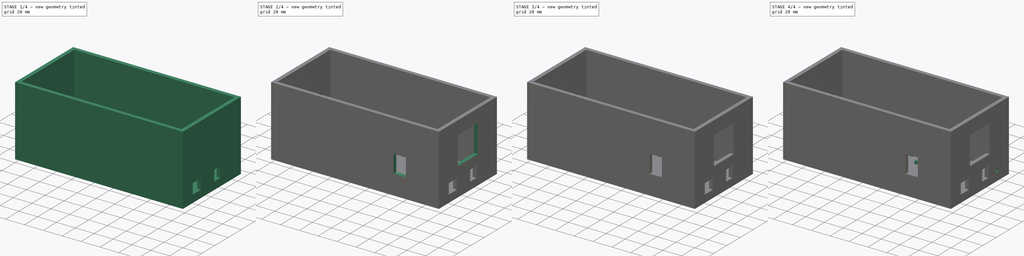
[diagram: build sequence overview — one tinted view per stage of 4, left to right]
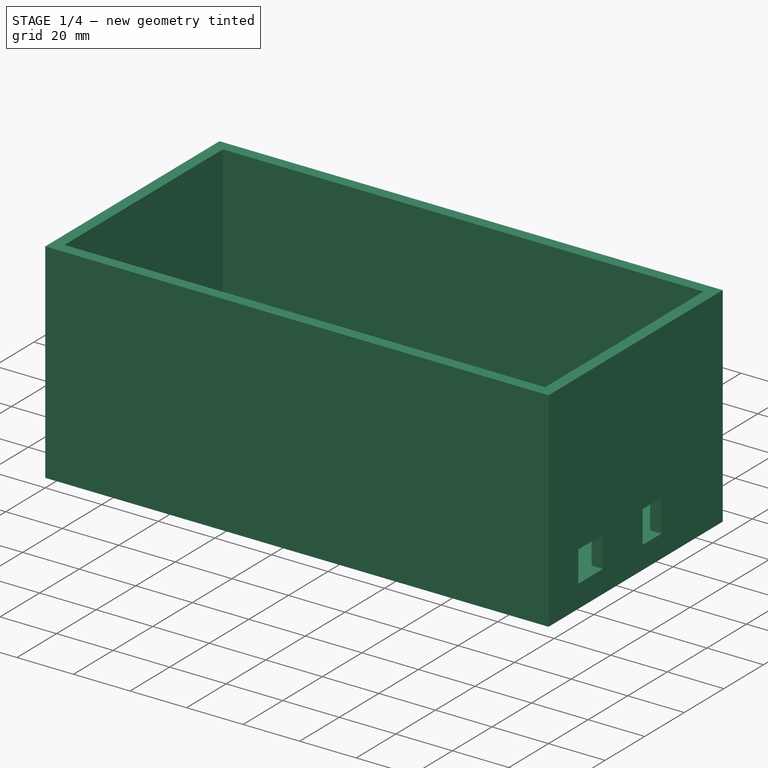
[diagram: stage 1 of 4 — iso view after this stage's code; geometry added in this stage tinted green]
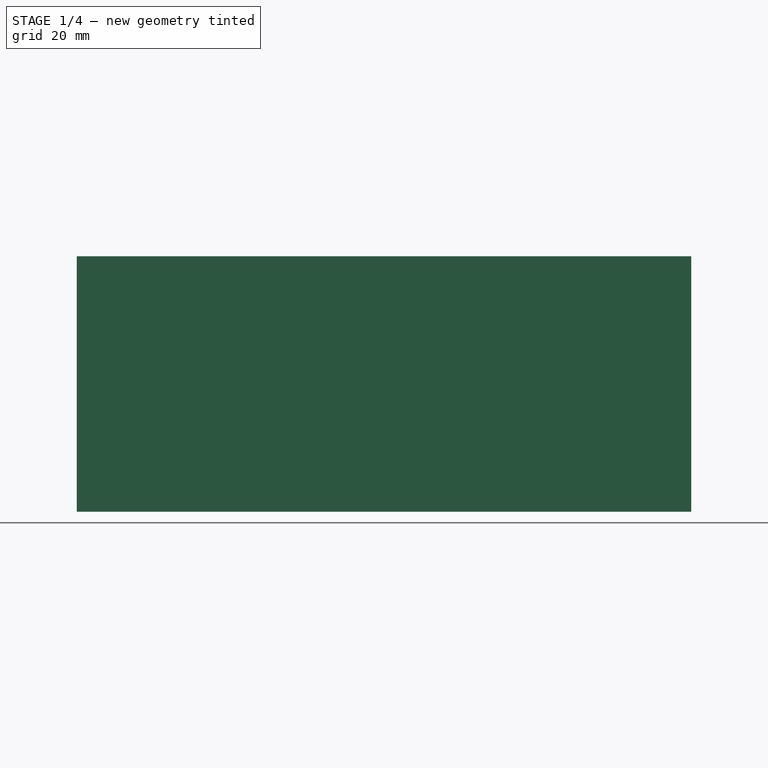
[diagram: stage 1 of 4 — front view after this stage's code; geometry added in this stage tinted green]
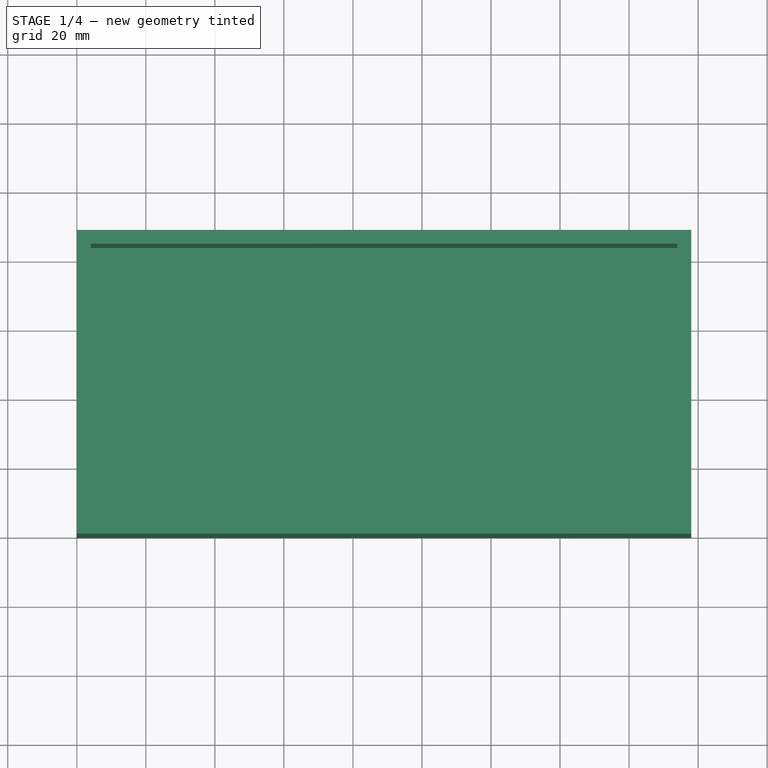
[diagram: stage 1 of 4 — top view after this stage's code; geometry added in this stage tinted green]
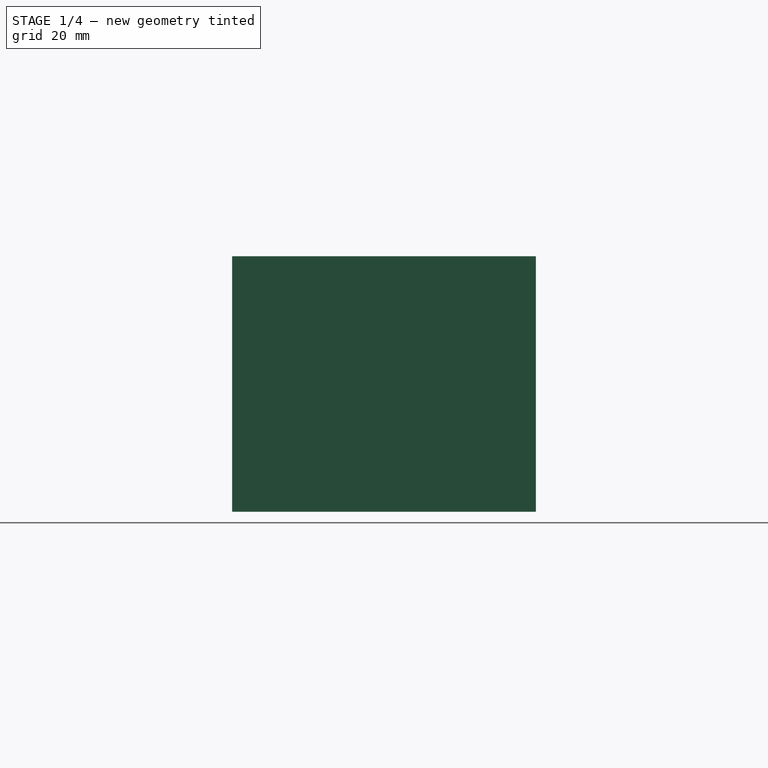
[diagram: stage 1 of 4 — right view after this stage's code; geometry added in this stage tinted green]
FCSTD DOCUMENT  (FreeCAD 1.0R39285 (Git))
Label: nariz_eletronico_arrumado
License: All rights reserved
LicenseURL: http://en.wikipedia.org/wiki/All_rights_reserved
objects: Sketcher::SketchObject×11, PartDesign::Pocket×7, PartDesign::Pad×4, PartDesign::Body×1
note: 56 computed .brp shape members not serialized (recipe doc carries the construction recipe); baked Part::Feature solids carry a one-line shape summary decoded from their .brp

FEATURE [Sketcher::SketchObject] Sketch
  ArcFitTolerance = 1e-06
  AttachmentSupport = -> [XY_Plane]
  FullyConstrained = true
  MakeInternals = false
  MapMode = 5
  sketch-geometry (4):
    g0: LineSegment StartX=0 StartY=0 StartZ=0 EndX=178 EndY=0 EndZ=0
    g1: LineSegment StartX=178 StartY=0 StartZ=0 EndX=178 EndY=88 EndZ=0
    g2: LineSegment StartX=178 StartY=88 StartZ=0 EndX=0 EndY=88 EndZ=0
    g3: LineSegment StartX=0 StartY=88 StartZ=0 EndX=0 EndY=0 EndZ=0
  constraints (11):
    c: Coincident(g0,g1)
    c: Coincident(g1,g2)
    c: Coincident(g2,g3)
    c: Coincident(g3,g0)
    c: Horizontal(g0)
    c: Horizontal(g2)
    c: Vertical(g1)
    c: Vertical(g3)
    c: Distance(g1,g3) = 178
    c: Distance(g0,g2) = 88
    c: Coincident(g0,g-1)
FEATURE [PartDesign::Pad] Pad
  Direction = (0,0,1)
  Length = 74
  Length2 = 10
  Profile = -> Sketch
  ReferenceAxis = -> Sketch [N_Axis]
  Suppressed = false
  Type = 0
FEATURE [Sketcher::SketchObject] Sketch001
  ArcFitTolerance = 1e-06
  AttachmentSupport = -> [Pad]
  FullyConstrained = true
  MakeInternals = false
  MapMode = 5
  Placement = pos=(0,0,74) rot=(0,0,1;0rad)
  sketch-geometry (4):
    g0: LineSegment StartX=4 StartY=84 StartZ=0 EndX=4 EndY=4 EndZ=0
    g1: LineSegment StartX=4 StartY=4 StartZ=0 EndX=174 EndY=4 EndZ=0
    g2: LineSegment StartX=174 StartY=4 StartZ=0 EndX=174 EndY=84 EndZ=0
    g3: LineSegment StartX=174 StartY=84 StartZ=0 EndX=4 EndY=84 EndZ=0
  constraints (12):
    c: Coincident(g0,g1)
    c: Coincident(g1,g2)
    c: Coincident(g2,g3)
    c: Coincident(g3,g0)
    c: Vertical(g0)
    c: Vertical(g2)
    c: Horizontal(g1)
    c: Horizontal(g3)
    c: DistanceY(g-1,g0) = 4
    c: DistanceY(g0,g0) = 80
    c: DistanceX(g3,g3) = 170
    c: Distance(g0,g-2) = 4
FEATURE [PartDesign::Pocket] Pocket
  BaseFeature = -> Pad
  Direction = (0,0,-1)
  Length = 70
  Length2 = 5
  Profile = -> Sketch001 [Edge1,Edge2,Edge4,Edge3]
  ReferenceAxis = -> Sketch001 [N_Axis]
  Suppressed = false
  Type = 0
FEATURE [Sketcher::SketchObject] Sketch002
  ArcFitTolerance = 1e-06
  AttachmentSupport = -> [Pocket]
  FullyConstrained = true
  MakeInternals = false
  MapMode = 5
  Placement = pos=(178,0,0) rot=(0.57735,0.57735,0.57735;2.0944rad)
  sketch-geometry (8):
    g0: LineSegment StartX=15 StartY=19 StartZ=0 EndX=15 EndY=8 EndZ=0
    g1: LineSegment StartX=15 StartY=8 StartZ=0 EndX=27.5 EndY=8 EndZ=0
    g2: LineSegment StartX=27.5 StartY=8 StartZ=0 EndX=27.5 EndY=19 EndZ=0
    g3: LineSegment StartX=27.5 StartY=19 StartZ=0 EndX=15 EndY=19 EndZ=0
    g4: LineSegment StartX=47.5 StartY=19.5 StartZ=0 EndX=47.5 EndY=8 EndZ=0
    g5: LineSegment StartX=47.5 StartY=8 StartZ=0 EndX=57 EndY=8 EndZ=0
    g6: LineSegment StartX=57 StartY=8 StartZ=0 EndX=57 EndY=19.5 EndZ=0
    g7: LineSegment StartX=57 StartY=19.5 StartZ=0 EndX=47.5 EndY=19.5 EndZ=0
  constraints (24):
    c: Coincident(g0,g1)
    c: Coincident(g1,g2)
    c: Coincident(g2,g3)
    c: Coincident(g3,g0)
    c: Vertical(g0)
    c: Vertical(g2)
    c: Horizontal(g1)
    c: Horizontal(g3)
    c: DistanceX(g-1,g0) = 15
    c: DistanceX(g3,g3) = 12.5
    c: DistanceY(g-1,g0) = 8
    c: DistanceY(g2,g2) = 11
    c: Coincident(g4,g5)
    c: Coincident(g5,g6)
    c: Coincident(g6,g7)
    c: Coincident(g7,g4)
    c: Vertical(g4)
    c: Vertical(g6)
    c: Horizontal(g5)
    c: Horizontal(g7)
    c: Distance(g4,g6) = 9.5
    c: Distance(g5,g7) = 11.5
    c: DistanceY(g-1,g5) = 8
    c: Distance(g4,g2) = 20
FEATURE [PartDesign::Pocket] Pocket001  label="FurosArduino"
  BaseFeature = -> Pocket
  Direction = (-1,0,0)
  Length = 5
  Length2 = 5
  Profile = -> Sketch002
  ReferenceAxis = -> Sketch002 [N_Axis]
  Suppressed = false
  Type = 0
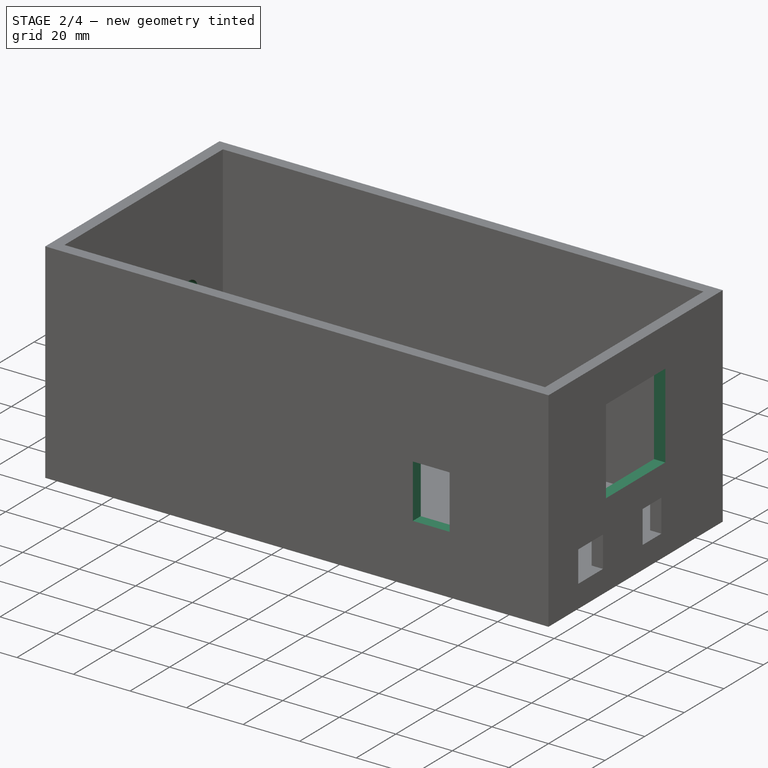
[diagram: stage 2 of 4 — iso view after this stage's code; geometry added in this stage tinted green]
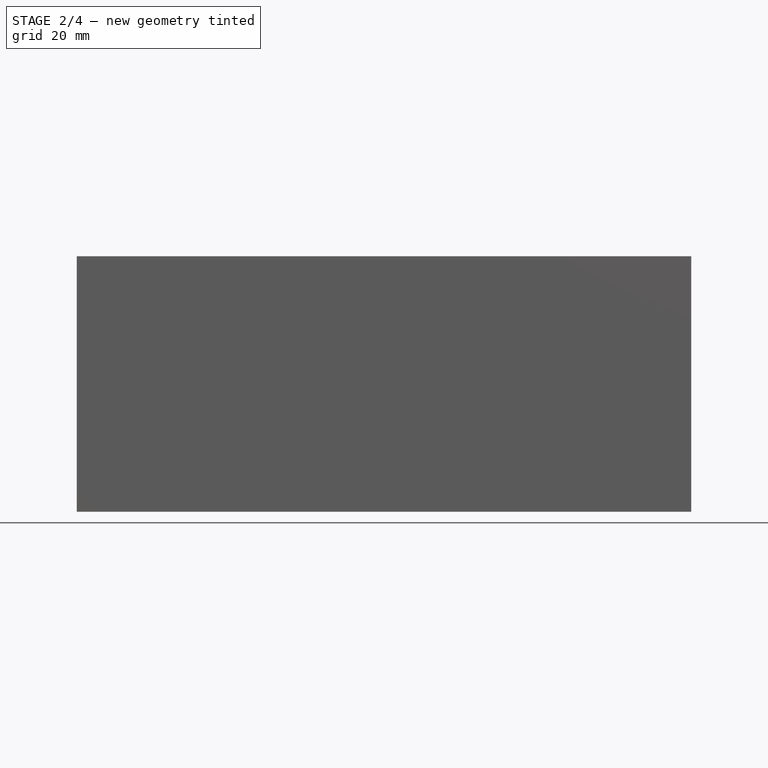
[diagram: stage 2 of 4 — front view after this stage's code; geometry added in this stage tinted green]
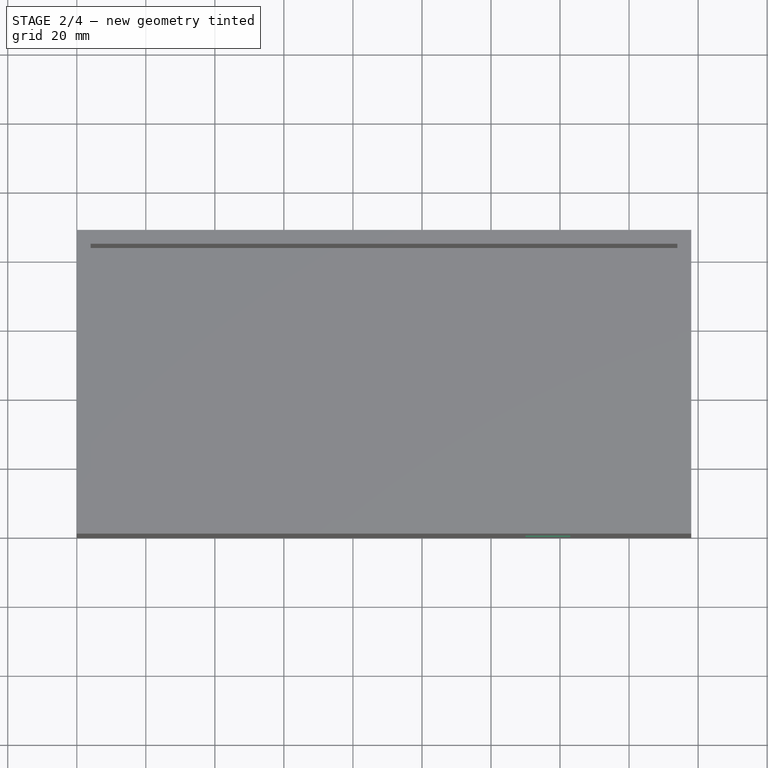
[diagram: stage 2 of 4 — top view after this stage's code; geometry added in this stage tinted green]
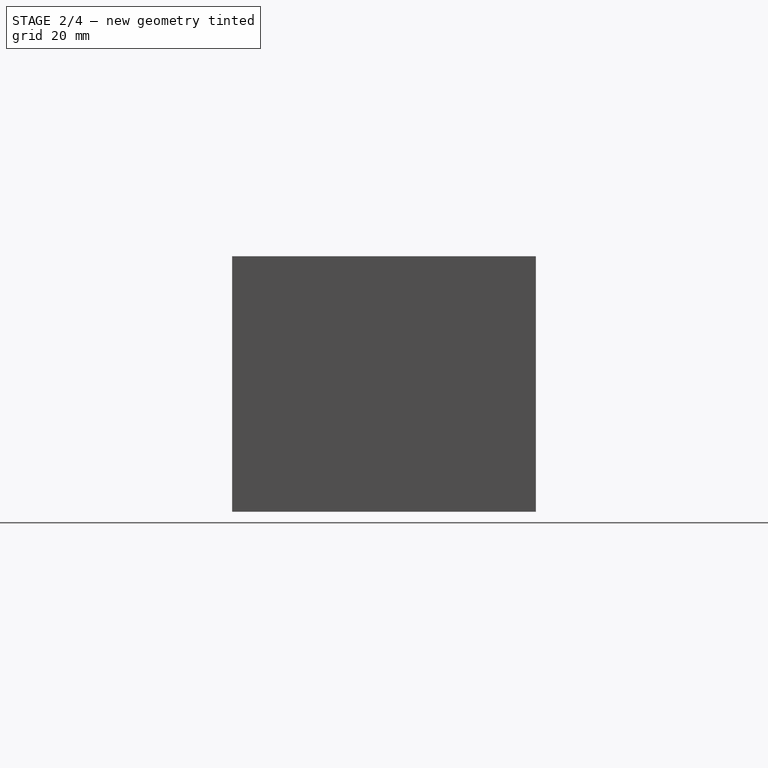
[diagram: stage 2 of 4 — right view after this stage's code; geometry added in this stage tinted green]
FEATURE [Sketcher::SketchObject] Sketch003
  ArcFitTolerance = 1e-06
  AttachmentSupport = -> [Pocket001]
  FullyConstrained = true
  MakeInternals = false
  MapMode = 5
  Placement = pos=(178,0,0) rot=(0.57735,0.57735,0.57735;2.0944rad)
  sketch-geometry (4):
    g0: LineSegment StartX=29 StartY=60 StartZ=0 EndX=29 EndY=30 EndZ=0
    g1: LineSegment StartX=29 StartY=30 StartZ=0 EndX=59 EndY=30 EndZ=0
    g2: LineSegment StartX=59 StartY=30 StartZ=0 EndX=59 EndY=60 EndZ=0
    g3: LineSegment StartX=59 StartY=60 StartZ=0 EndX=29 EndY=60 EndZ=0
  constraints (12):
    c: Coincident(g0,g1)
    c: Coincident(g1,g2)
    c: Coincident(g2,g3)
    c: Coincident(g3,g0)
    c: Vertical(g0)
    c: Vertical(g2)
    c: Horizontal(g1)
    c: Horizontal(g3)
    c: Distance(g0,g2) = 30
    c: Distance(g1,g3) = 30
    c: DistanceY(g-1,g0) = 60
    c: DistanceX(g-1,g2) = 59
FEATURE [PartDesign::Pocket] Pocket002  label="FurosVentoinha"
  BaseFeature = -> Pocket001
  Direction = (-1,0,0)
  Length = 5
  Length2 = 5
  Profile = -> Sketch003
  ReferenceAxis = -> Sketch003 [N_Axis]
  Suppressed = false
  Type = 0
FEATURE [Sketcher::SketchObject] Sketch004
  ArcFitTolerance = 1e-06
  AttachmentSupport = -> [Pocket002]
  FullyConstrained = true
  MakeInternals = false
  MapMode = 5
  Placement = pos=(0,0,0) rot=(1,0,0;1.5708rad)
  sketch-geometry (4):
    g0: LineSegment StartX=130 StartY=21 StartZ=0 EndX=143 EndY=21 EndZ=0
    g1: LineSegment StartX=143 StartY=21 StartZ=0 EndX=143 EndY=40 EndZ=0
    g2: LineSegment StartX=143 StartY=40 StartZ=0 EndX=130 EndY=40 EndZ=0
    g3: LineSegment StartX=130 StartY=40 StartZ=0 EndX=130 EndY=21 EndZ=0
  constraints (12):
    c: Coincident(g0,g1)
    c: Coincident(g1,g2)
    c: Coincident(g2,g3)
    c: Coincident(g3,g0)
    c: Horizontal(g0)
    c: Horizontal(g2)
    c: Vertical(g1)
    c: Vertical(g3)
    c: Distance(g1,g3) = 13
    c: Distance(g0,g2) = 19
    c: DistanceY(g-1,g0) = 21
    c: DistanceX(g-1,g0) = 130
FEATURE [PartDesign::Pocket] Pocket003  label="FurosInterruptor"
  BaseFeature = -> Pocket002
  Direction = (0,1,-2e-16)
  Length = 5
  Length2 = 5
  Profile = -> Sketch004
  ReferenceAxis = -> Sketch004 [N_Axis]
  Suppressed = false
  Type = 0
FEATURE [Sketcher::SketchObject] Sketch005
  ArcFitTolerance = 1e-06
  AttachmentSupport = -> [Pocket003]
  FullyConstrained = true
  MakeInternals = false
  MapMode = 5
  Placement = pos=(0,0,0) rot=(0.57735,-0.57735,-0.57735;2.0944rad)
  sketch-geometry (1):
    g0: Circle CenterX=-67 CenterY=34 CenterZ=0 NormalX=0 NormalY=0 NormalZ=1 AngleXU=0 Radius=4.5
  constraints (3):
    c: Diameter(g0) = 9
    c: DistanceX(g0) = -67
    c: DistanceY(g-1,g0) = 34
FEATURE [PartDesign::Pocket] Pocket004  label="FuroMangueira"
  BaseFeature = -> Pocket003
  Direction = (1,0,0)
  Length = 5
  Length2 = 5
  Profile = -> Sketch005
  ReferenceAxis = -> Sketch005 [N_Axis]
  Suppressed = false
  Type = 0
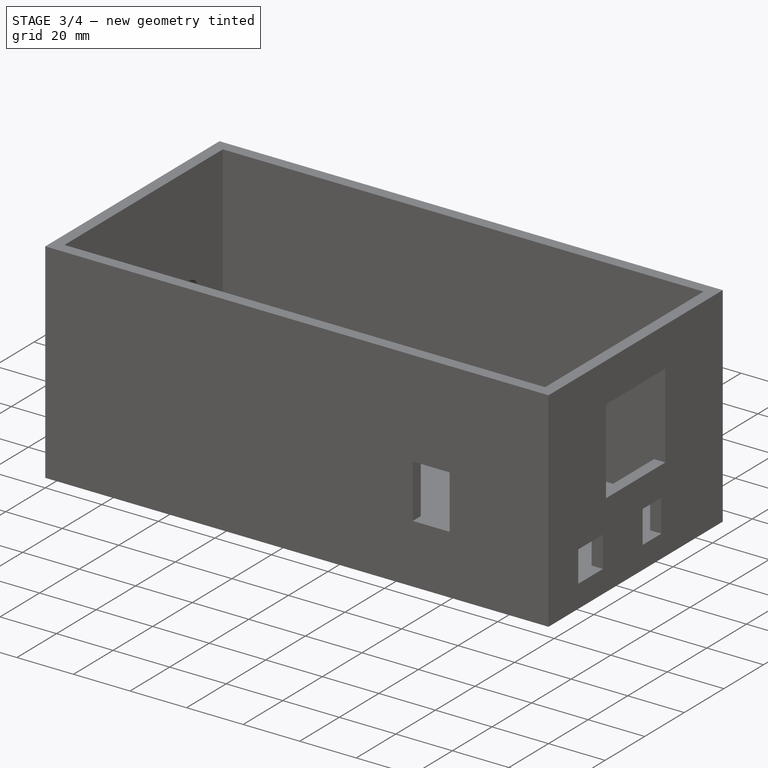
[diagram: stage 3 of 4 — iso view after this stage's code; geometry added in this stage tinted green]
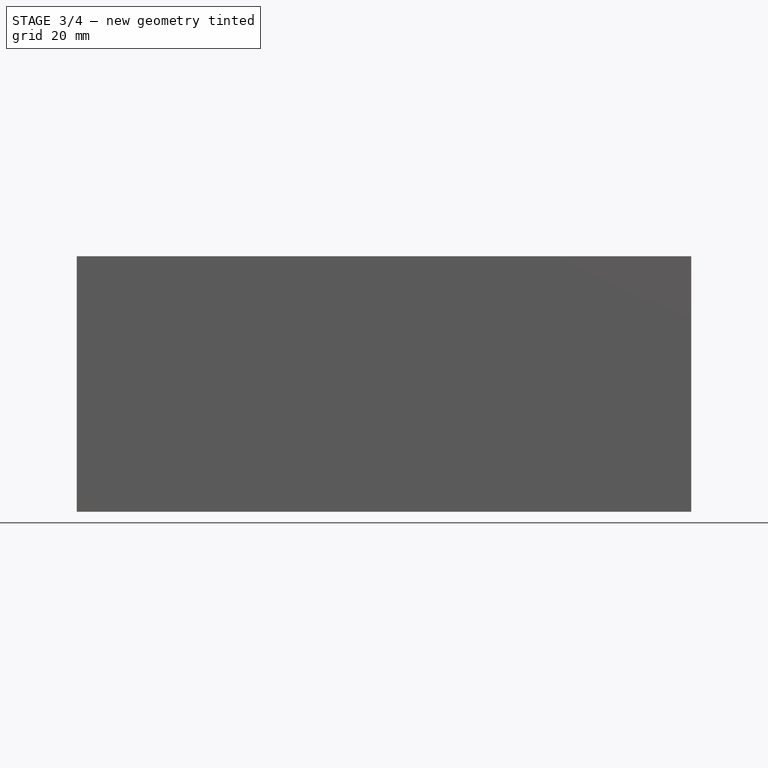
[diagram: stage 3 of 4 — front view after this stage's code; geometry added in this stage tinted green]
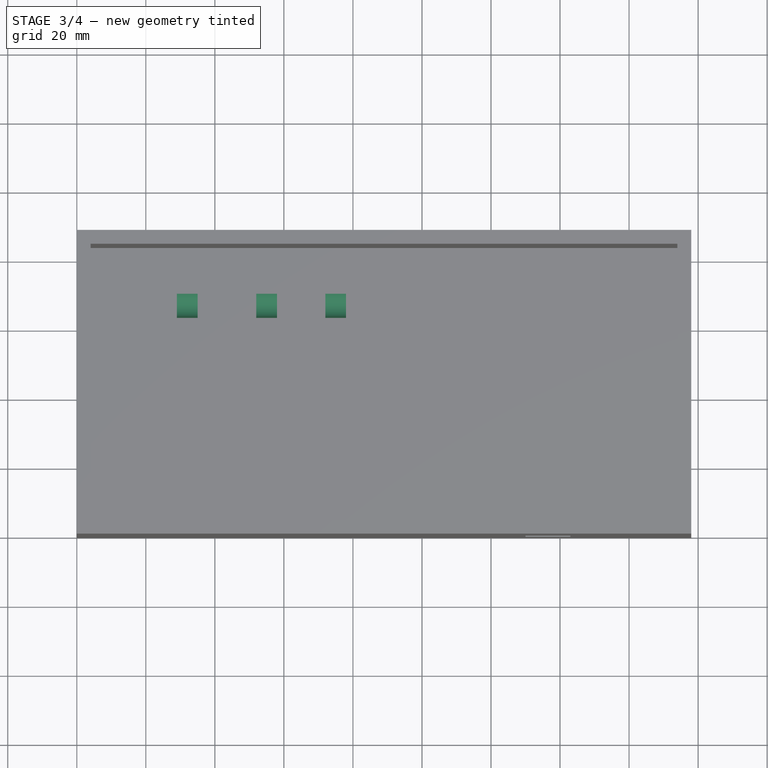
[diagram: stage 3 of 4 — top view after this stage's code; geometry added in this stage tinted green]
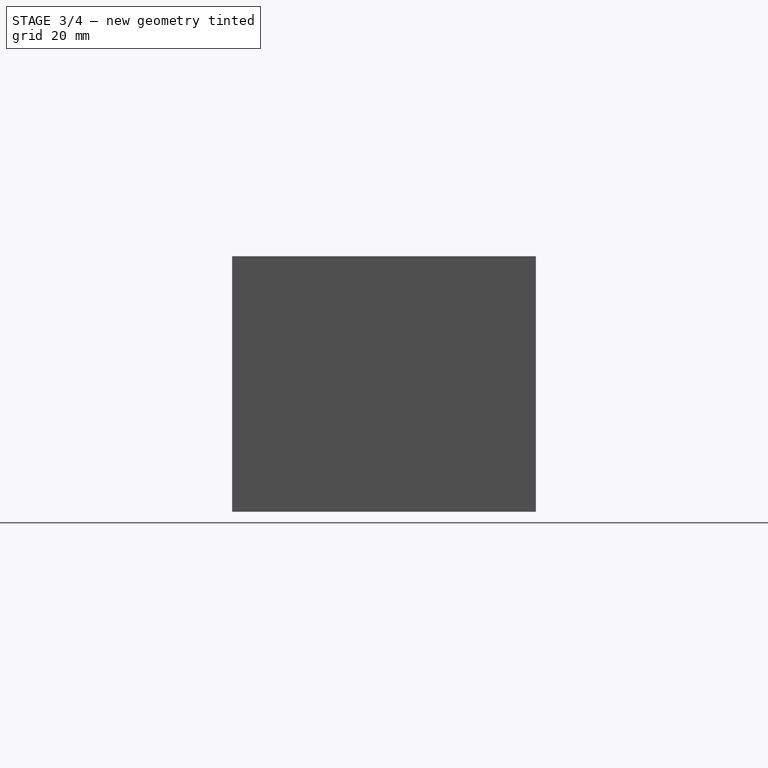
[diagram: stage 3 of 4 — right view after this stage's code; geometry added in this stage tinted green]
FEATURE [Sketcher::SketchObject] Sketch006
  ArcFitTolerance = 1e-06
  AttachmentSupport = -> [Pocket004]
  FullyConstrained = true
  MakeInternals = false
  MapMode = 5
  Placement = pos=(0,0,4) rot=(0,0,1;0rad)
  sketch-geometry (15):
    g0: LineSegment StartX=29 StartY=70.25 StartZ=0 EndX=29 EndY=63.75 EndZ=0
    g1: LineSegment StartX=29 StartY=63.75 StartZ=0 EndX=35 EndY=63.75 EndZ=0
    g2: LineSegment StartX=35 StartY=63.75 StartZ=0 EndX=35 EndY=70.25 EndZ=0
    g3: LineSegment StartX=35 StartY=70.25 StartZ=0 EndX=29 EndY=70.25 EndZ=0
    g4: GeomPoint [constr] X=32 Y=67 Z=0
    g5: LineSegment StartX=52 StartY=70.25 StartZ=0 EndX=52 EndY=63.75 EndZ=0
    g6: LineSegment StartX=52 StartY=63.75 StartZ=0 EndX=58 EndY=63.75 EndZ=0
    g7: LineSegment StartX=58 StartY=63.75 StartZ=0 EndX=58 EndY=70.25 EndZ=0
    g8: LineSegment StartX=58 StartY=70.25 StartZ=0 EndX=52 EndY=70.25 EndZ=0
    g9: GeomPoint [constr] X=55 Y=67 Z=0
    g10: LineSegment StartX=72 StartY=70.25 StartZ=0 EndX=72 EndY=63.75 EndZ=0
    g11: LineSegment StartX=72 StartY=63.75 StartZ=0 EndX=78 EndY=63.75 EndZ=0
    g12: LineSegment StartX=78 StartY=63.75 StartZ=0 EndX=78 EndY=70.25 EndZ=0
    g13: LineSegment StartX=78 StartY=70.25 StartZ=0 EndX=72 EndY=70.25 EndZ=0
    g14: GeomPoint [constr] X=75 Y=67 Z=0
  constraints (39):
    c: Coincident(g0,g1)
    c: Coincident(g1,g2)
    c: Coincident(g2,g3)
    c: Coincident(g3,g0)
    c: Vertical(g0)
    c: Vertical(g2)
    c: Horizontal(g1)
    c: Horizontal(g3)
    c: Symmetric(g2,g0,g4)
    c: Coincident(g5,g6)
    c: Coincident(g6,g7)
    c: Coincident(g7,g8)
    c: Coincident(g8,g5)
    c: Vertical(g5)
    c: Vertical(g7)
    c: Horizontal(g6)
    c: Horizontal(g8)
    c: Symmetric(g7,g5,g9)
    c: Coincident(g10,g11)
    c: Coincident(g11,g12)
    c: Coincident(g12,g13)
    c: Coincident(g13,g10)
    c: Vertical(g10)
    c: Vertical(g12)
    c: Horizontal(g11)
    c: Horizontal(g13)
    c: Symmetric(g12,g10,g14)
    c: Horizontal(g4,g9)
    c: Horizontal(g9,g14)
    c: DistanceY(g-1,g4) = 67
    c: DistanceY(g0,g0) = 6.5
    c: Horizontal(g0,g5)
    c: Horizontal(g5,g10)
    c: DistanceX(g1,g1) = 6
    c: DistanceX(g6,g6) = 6
    c: DistanceX(g11,g11) = 6
    c: DistanceX(g-1,g4) = 32
    c: DistanceX(g-1,g9) = 55
    c: DistanceX(g-1,g14) = 75
FEATURE [PartDesign::Pad] Pad001  label="SuporteMangueira"
  BaseFeature = -> Pocket004
  Direction = (0,0,1)
  Length = 30
  Length2 = 10
  Profile = -> Sketch006
  ReferenceAxis = -> Sketch006 [N_Axis]
  Suppressed = false
  Type = 0
FEATURE [Sketcher::SketchObject] Sketch007
  ArcFitTolerance = 1e-06
  AttachmentSupport = -> [Pad001]
  FullyConstrained = true
  MakeInternals = false
  MapMode = 5
  Placement = pos=(78,0,0) rot=(0.57735,0.57735,0.57735;2.0944rad)
  sketch-geometry (1):
    g0: Circle CenterX=67 CenterY=34 CenterZ=0 NormalX=0 NormalY=0 NormalZ=1 AngleXU=0 Radius=4.5
  constraints (3):
    c: Diameter(g0) = 9
    c: DistanceX(g-1,g0) = 67
    c: DistanceY(g-1,g0) = 34
FEATURE [PartDesign::Pocket] Pocket005  label="FuroSuporteMangueira"
  BaseFeature = -> Pad001
  Direction = (-1,0,0)
  Length = 90
  Length2 = 5
  Profile = -> Sketch007
  ReferenceAxis = -> Sketch007 [N_Axis]
  Suppressed = false
  Type = 0
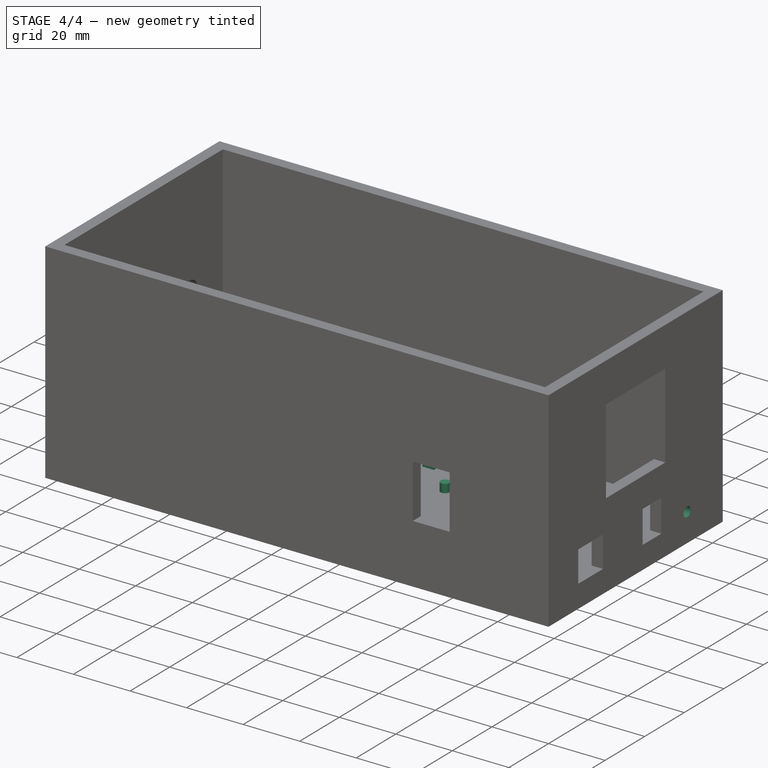
[diagram: stage 4 of 4 — iso view after this stage's code; geometry added in this stage tinted green]
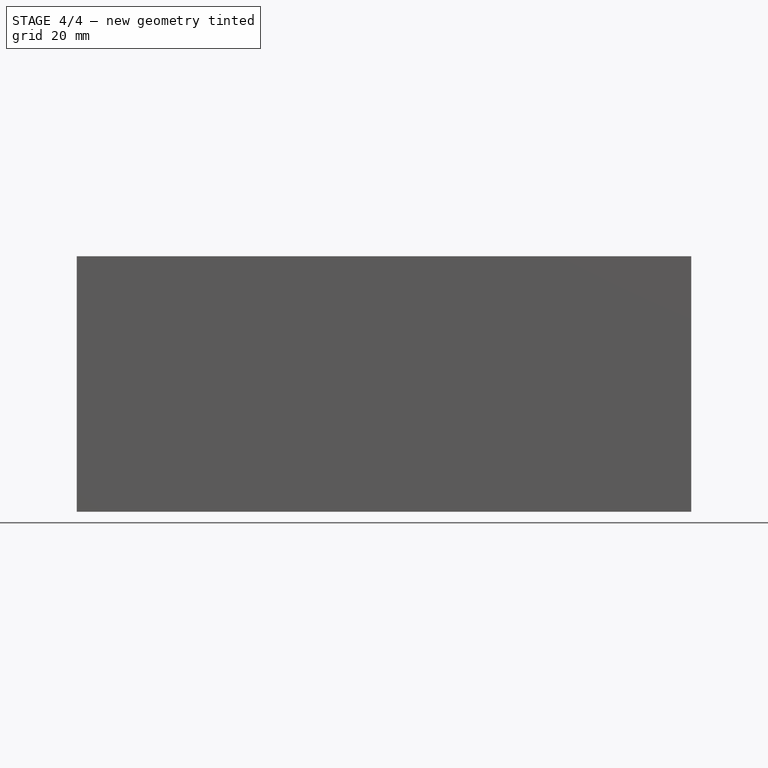
[diagram: stage 4 of 4 — front view after this stage's code; geometry added in this stage tinted green]
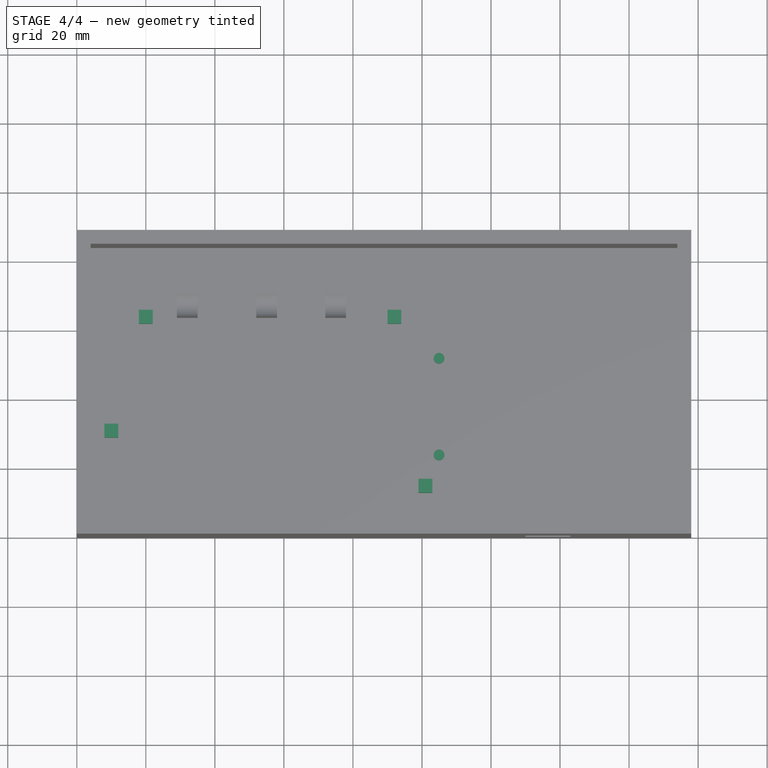
[diagram: stage 4 of 4 — top view after this stage's code; geometry added in this stage tinted green]
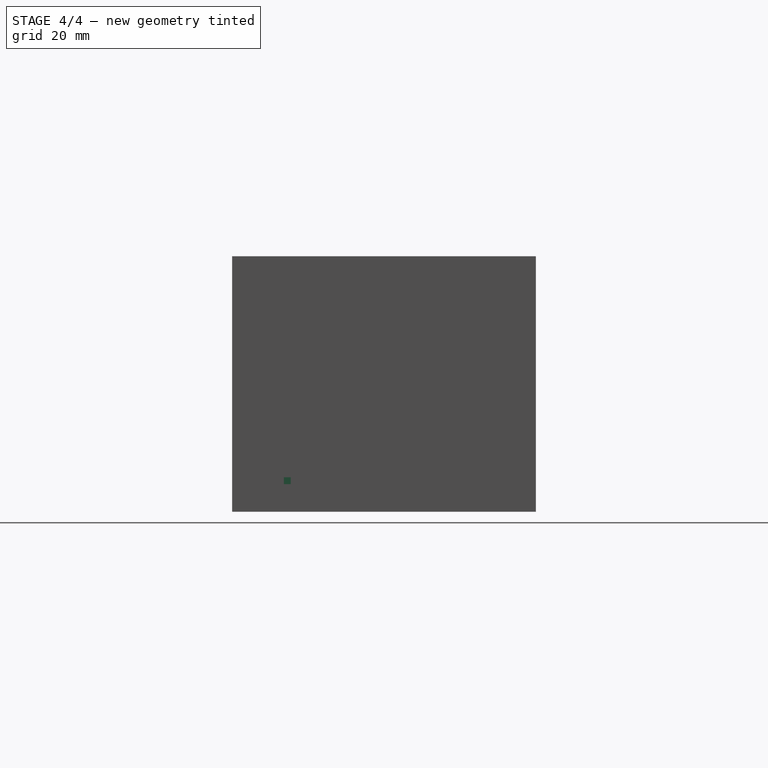
[diagram: stage 4 of 4 — right view after this stage's code; geometry added in this stage tinted green]
FEATURE [Sketcher::SketchObject] Sketch008
  ArcFitTolerance = 1e-06
  AttachmentSupport = -> [Pocket005]
  FullyConstrained = true
  MakeInternals = false
  MapMode = 5
  Placement = pos=(0,0,4) rot=(0,0,1;0rad)
  sketch-geometry (2):
    g0: Circle CenterX=104.96 CenterY=52 CenterZ=0 NormalX=0 NormalY=0 NormalZ=1 AngleXU=0 Radius=1.55
    g1: Circle CenterX=104.96 CenterY=24 CenterZ=0 NormalX=0 NormalY=0 NormalZ=1 AngleXU=0 Radius=1.55
  constraints (6):
    c: Diameter(g0) = 3.1
    c: DistanceY(g0) = 52
    c: Diameter(g1) = 3.1
    c: Vertical(g1,g0)
    c: DistanceY(g1,g0) = 28
    c: DistanceX(g-1,g0) = 104.96
FEATURE [PartDesign::Pad] Pad002  label="SuportesArduino"
  BaseFeature = -> Pocket005
  Direction = (0,0,1)
  Length = 3
  Length2 = 10
  Profile = -> Sketch008
  ReferenceAxis = -> Sketch008 [N_Axis]
  Suppressed = false
  Type = 0
FEATURE [Sketcher::SketchObject] Sketch010
  ArcFitTolerance = 1e-06
  FullyConstrained = true
  MakeInternals = false
  MapMode = 5
  Placement = pos=(178,0,0) rot=(0.57735,0.57735,0.57735;2.0944rad)
  sketch-geometry (1):
    g0: Circle CenterX=70 CenterY=10 CenterZ=0 NormalX=0 NormalY=0 NormalZ=1 AngleXU=0 Radius=1.75
  constraints (3):
    c: Diameter(g0) = 3.5
    c: DistanceY(g-1,g0) = 10
    c: DistanceX(g-1,g0) = 70
FEATURE [PartDesign::Pocket] Pocket006  label="FuroEnergiaVentoinha"
  BaseFeature = -> Pad002
  Direction = (-1,-1e-16,1e-16)
  Length = 5
  Length2 = 5
  Profile = -> Sketch010
  ReferenceAxis = -> Sketch010 [N_Axis]
  Suppressed = false
  Type = 0
FEATURE [Sketcher::SketchObject] Sketch011
  ArcFitTolerance = 1e-06
  AttachmentSupport = -> [Pocket006]
  FullyConstrained = true
  MakeInternals = false
  MapMode = 5
  Placement = pos=(0,0,4) rot=(0,0,1;0rad)
  sketch-geometry (20):
    g0: LineSegment StartX=8 StartY=33 StartZ=0 EndX=8 EndY=29 EndZ=0
    g1: LineSegment StartX=8 StartY=29 StartZ=0 EndX=12 EndY=29 EndZ=0
    g2: LineSegment StartX=12 StartY=29 StartZ=0 EndX=12 EndY=33 EndZ=0
    g3: LineSegment StartX=12 StartY=33 StartZ=0 EndX=8 EndY=33 EndZ=0
    g4: GeomPoint [constr] X=10 Y=31 Z=0
    g5: LineSegment StartX=18 StartY=62 StartZ=0 EndX=22 EndY=62 EndZ=0
    g6: LineSegment StartX=22 StartY=62 StartZ=0 EndX=22 EndY=66 EndZ=0
    g7: LineSegment StartX=22 StartY=66 StartZ=0 EndX=18 EndY=66 EndZ=0
    g8: LineSegment StartX=18 StartY=66 StartZ=0 EndX=18 EndY=62 EndZ=0
    g9: GeomPoint [constr] X=20 Y=64 Z=0
    g10: LineSegment StartX=99 StartY=13 StartZ=0 EndX=103 EndY=13 EndZ=0
    g11: LineSegment StartX=103 StartY=13 StartZ=0 EndX=103 EndY=17 EndZ=0
    g12: LineSegment StartX=103 StartY=17 StartZ=0 EndX=99 EndY=17 EndZ=0
    g13: LineSegment StartX=99 StartY=17 StartZ=0 EndX=99 EndY=13 EndZ=0
    g14: GeomPoint [constr] X=101 Y=15 Z=0
    g15: LineSegment StartX=90 StartY=62 StartZ=0 EndX=94 EndY=62 EndZ=0
    g16: LineSegment StartX=94 StartY=62 StartZ=0 EndX=94 EndY=66 EndZ=0
    g17: LineSegment StartX=94 StartY=66 StartZ=0 EndX=90 EndY=66 EndZ=0
    g18: LineSegment StartX=90 StartY=66 StartZ=0 EndX=90 EndY=62 EndZ=0
    g19: GeomPoint [constr] X=92 Y=64 Z=0
  constraints (52):
    c: Coincident(g0,g1)
    c: Coincident(g1,g2)
    c: Coincident(g2,g3)
    c: Coincident(g3,g0)
    c: Vertical(g0)
    c: Vertical(g2)
    c: Horizontal(g1)
    c: Horizontal(g3)
    c: Symmetric(g2,g0,g4)
    c: DistanceX(g1,g1) = 4
    c: Distance(g0,g0) = 4
    c: DistanceX(g-1,g1) = 12
    c: DistanceY(g-1,g4) = 31
    c: Coincident(g5,g6)
    c: Coincident(g6,g7)
    c: Coincident(g7,g8)
    c: Coincident(g8,g5)
    c: Horizontal(g5)
    c: Horizontal(g7)
    c: Vertical(g6)
    c: Vertical(g8)
    c: Symmetric(g7,g5,g9)
    c: Distance(g6,g8) = 4
    c: Distance(g5,g7) = 4
    c: DistanceY(g-1,g5) = 62
    c: DistanceX(g-1,g9) = 20
    c: Coincident(g10,g11)
    c: Coincident(g11,g12)
    c: Coincident(g12,g13)
    c: Coincident(g13,g10)
    c: Horizontal(g10)
    c: Horizontal(g12)
    c: Vertical(g11)
    c: Vertical(g13)
    c: Symmetric(g12,g10,g14)
    c: Distance(g11,g13) = 4
    c: Distance(g10,g12) = 4
    c: DistanceX(g-1,g10) = 99
    c: DistanceY(g-1,g14) = 15
    c: Coincident(g15,g16)
    c: Coincident(g16,g17)
    c: Coincident(g17,g18)
    c: Coincident(g18,g15)
    c: Horizontal(g15)
    c: Horizontal(g17)
    c: Vertical(g16)
    c: Vertical(g18)
    c: Symmetric(g17,g15,g19)
    c: Distance(g16,g18) = 4
    c: Distance(g15,g17) = 4
    c: Horizontal(g19,g9)
    c: DistanceX(g-1,g19) = 92
FEATURE [PartDesign::Pad] Pad004  label="SuportesProtoboard"
  BaseFeature = -> Pocket006
  Direction = (0,0,1)
  Length = 6
  Length2 = 10
  Profile = -> Sketch011
  ReferenceAxis = -> Sketch011 [N_Axis]
  Suppressed = false
  Type = 0
FEATURE [PartDesign::Body] Body
  AllowCompound = false
  Group = -> [Sketch,Pad,Sketch001,Pocket,Sketch002,Pocket001,Sketch003,Pocket002,Sketch004,Pocket003,Sketch005,Pocket004,Sketch006,Pad001,Sketch007,Pocket005,Sketch008,Pad002,Sketch010,Pocket006,Sketch011,Pad004]
  Origin = -> Origin
  Tip = -> Pad004
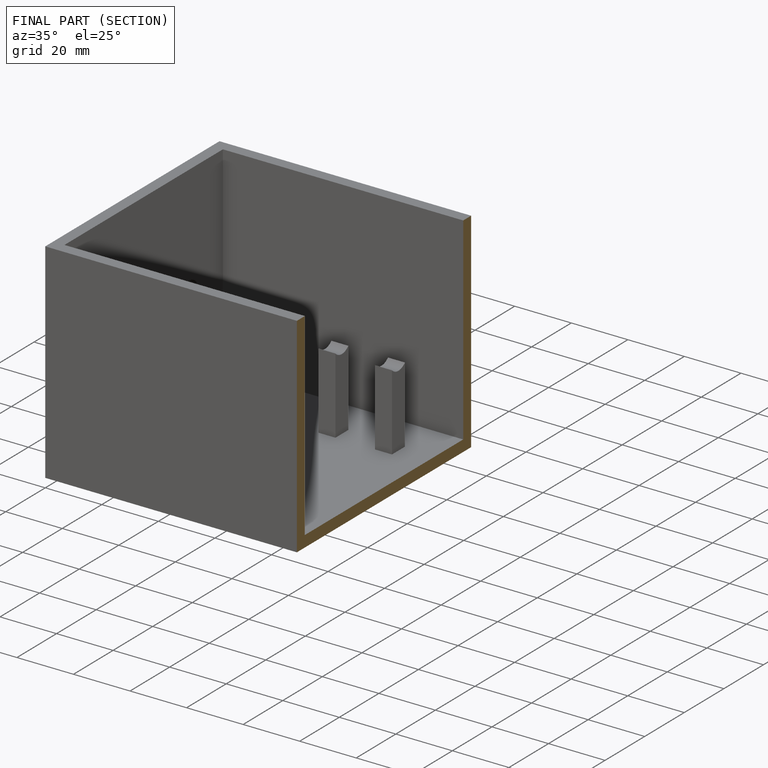
[diagram: finished part — half-section view (interior)]
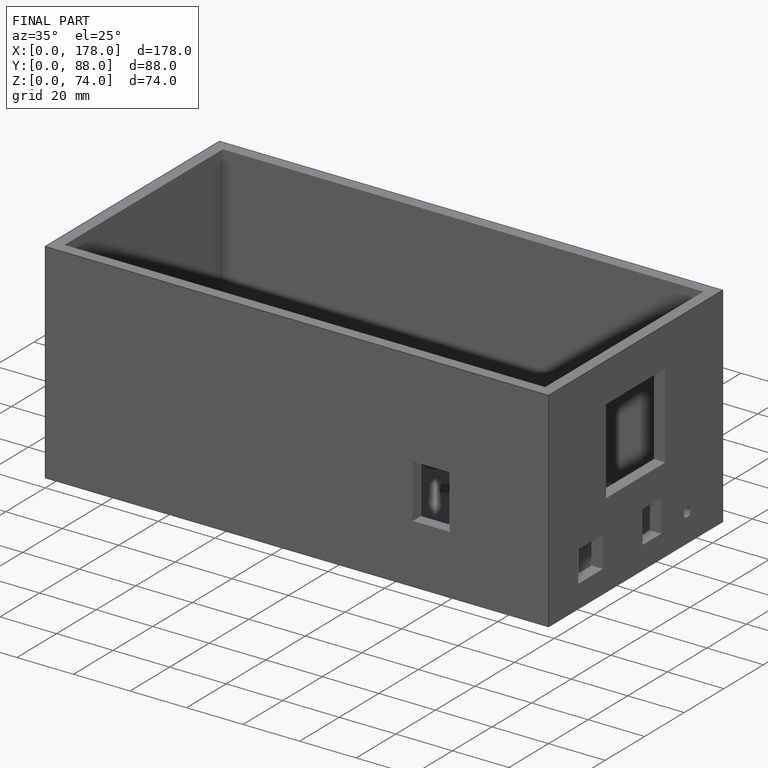
[diagram: finished part — iso view with bounding-box wireframe]
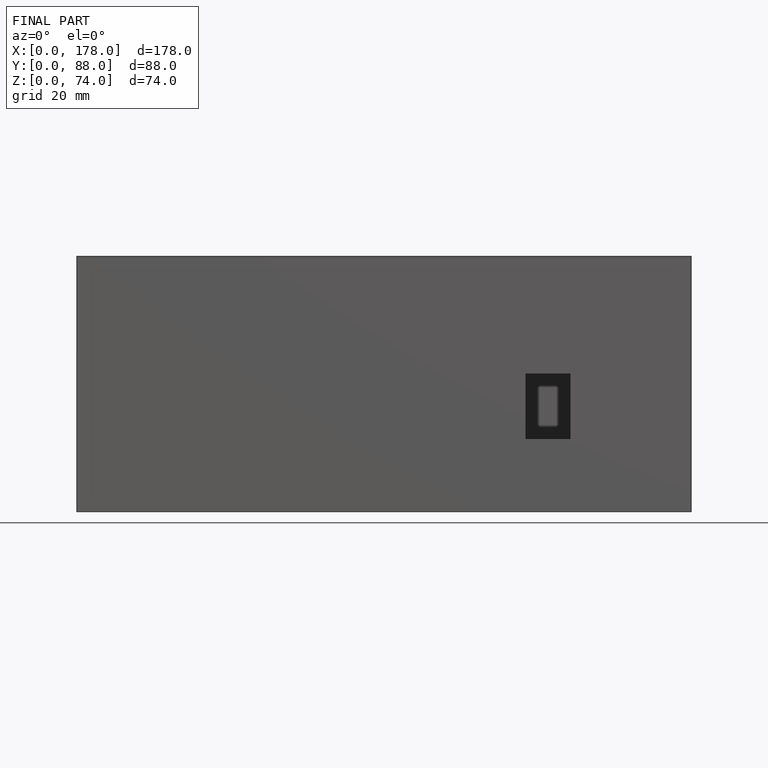
[diagram: finished part — front view with bounding-box wireframe]
